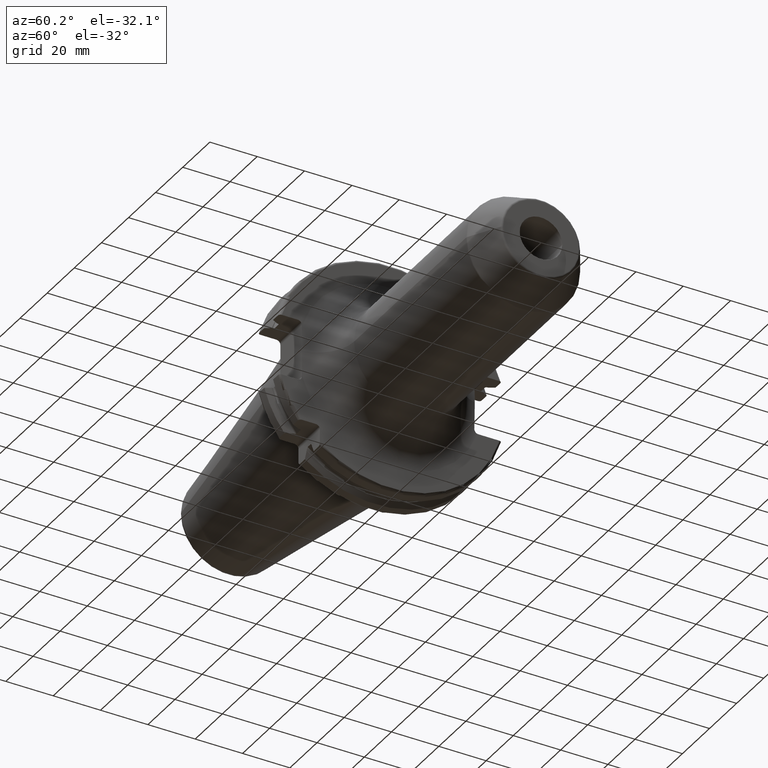
[diagram: clean part render]
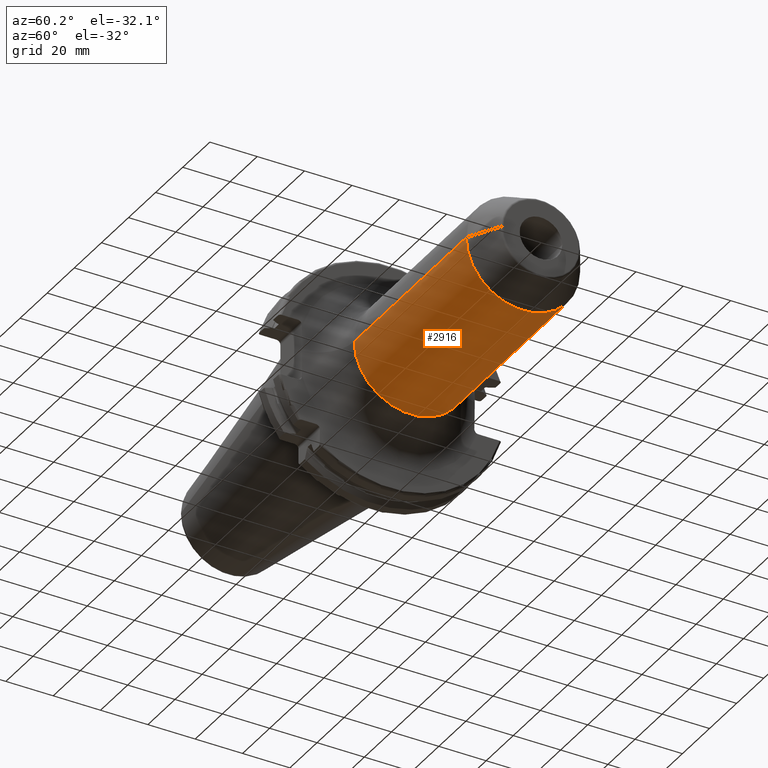
[diagram: same view with one face highlighted and labeled with its STEP entity id]
A machine part, auxiliary view. The second image highlights one B-rep face of the part: STEP entity #2916.
In plain terms, the highlighted cylindrical surface (partial cylindrical patch) has radius 24 mm, axis along (1, 0, 0).
Its self-contained STEP definition (entity closure, byte-faithful):
#1176=CARTESIAN_POINT('',(1.E2,2.4E1,0.E0));
#1177=CARTESIAN_POINT('',(1.E2,2.4E1,-3.104221699493E-1));
#1178=CARTESIAN_POINT('',(1.000474589876E2,2.398806754006E1,
-9.238599184697E-1));
#1179=CARTESIAN_POINT('',(1.002614472636E2,2.393547067972E1,-1.832680027886E0));
#1180=CARTESIAN_POINT('',(1.006115065907E2,2.385334910001E1,-2.692389651151E0));
#1181=CARTESIAN_POINT('',(1.010864266556E2,2.374981516105E1,-3.484002101402E0));
#1182=CARTESIAN_POINT('',(1.016748373096E2,2.363414913713E1,-4.192830136926E0));
#1183=CARTESIAN_POINT('',(1.023780022950E2,2.351454159285E1,-4.814373051576E0));
#1184=CARTESIAN_POINT('',(1.031759028833E2,2.340400129208E1,-5.321702008537E0));
#1185=CARTESIAN_POINT('',(1.040408770022E2,2.331463939970E1,-5.697398823349E0));
#1186=CARTESIAN_POINT('',(1.049713159454E2,2.325398447360E1,-5.938091722485E0));
#1187=CARTESIAN_POINT('',(1.059625839053E2,2.323069127969E1,-6.027724531579E0));
#1188=CARTESIAN_POINT('',(1.069563152425E2,2.325082766100E1,-5.950325439996E0));
#1189=CARTESIAN_POINT('',(1.078934724305E2,2.330910025744E1,-5.719850394909E0));
#1190=CARTESIAN_POINT('',(1.087687139381E2,2.339724352961E1,-5.351180394185E0));
#1191=CARTESIAN_POINT('',(1.095788462977E2,2.350779794895E1,-4.847150170071E0));
#1192=CARTESIAN_POINT('',(1.102942873661E2,2.362841636613E1,-4.225104405472E0));
#1193=CARTESIAN_POINT('',(1.108929966952E2,2.374549611544E1,-3.513651219124E0));
#1194=CARTESIAN_POINT('',(1.113770883492E2,2.385073159101E1,-2.716141496831E0));
#1195=CARTESIAN_POINT('',(1.117334721691E2,2.393423475666E1,-1.849943448490E0));
#1196=CARTESIAN_POINT('',(1.119516099104E2,2.398783169232E1,
-9.328464695382E-1));
#1197=CARTESIAN_POINT('',(1.12E2,2.4E1,-3.135199927511E-1));
#1198=CARTESIAN_POINT('',(1.12E2,2.4E1,0.E0));
#1200=DIRECTION('',(-9.999999996911E-1,-1.697496184032E-9,2.485436165492E-5));
#1201=VECTOR('',#1200,6.595000002037E1);
#1202=CARTESIAN_POINT('',(1.E2,2.4E1,0.E0));
#1203=LINE('',#1202,#1201);
#1204=CARTESIAN_POINT('',(3.405E1,0.E0,0.E0));
#1205=DIRECTION('',(1.E0,0.E0,0.E0));
#1206=DIRECTION('',(0.E0,-1.E0,0.E0));
#1207=AXIS2_PLACEMENT_3D('',#1204,#1205,#1206);
#1209=DIRECTION('',(-9.999999998035E-1,1.353980365219E-9,-1.982467948264E-5));
#1210=VECTOR('',#1209,8.268205082382E1);
#1211=CARTESIAN_POINT('',(1.167320508076E2,-2.4E1,4.909795810200E-12));
#1212=LINE('',#1211,#1210);
#1213=CARTESIAN_POINT('',(1.167320508076E2,0.E0,0.E0));
#1214=DIRECTION('',(-1.E0,0.E0,0.E0));
#1215=DIRECTION('',(0.E0,1.E0,0.E0));
#1216=AXIS2_PLACEMENT_3D('',#1213,#1214,#1215);
#1218=DIRECTION('',(-1.E0,0.E0,1.038030226070E-12));
#1219=VECTOR('',#1218,4.732050807569E0);
#1220=CARTESIAN_POINT('',(1.167320508076E2,2.4E1,-4.910538723947E-12));
#1221=LINE('',#1220,#1219);
#1664=CARTESIAN_POINT('',(1.12E2,2.4E1,0.E0));
#1666=VERTEX_POINT('',#1664);
#1668=CARTESIAN_POINT('',(1.E2,2.4E1,0.E0));
#1670=VERTEX_POINT('',#1668);
#1677=CARTESIAN_POINT('',(3.405E1,-2.4E1,0.E0));
#1678=CARTESIAN_POINT('',(3.405E1,2.4E1,0.E0));
#1679=VERTEX_POINT('',#1677);
#1680=VERTEX_POINT('',#1678);
#1685=CARTESIAN_POINT('',(1.167320508076E2,2.4E1,0.E0));
#1686=CARTESIAN_POINT('',(1.167320508076E2,-2.4E1,0.E0));
#1687=VERTEX_POINT('',#1685);
#1688=VERTEX_POINT('',#1686);
#2903=CARTESIAN_POINT('',(1.35025E1,0.E0,0.E0));
#2904=DIRECTION('',(1.E0,0.E0,0.E0));
#2905=DIRECTION('',(0.E0,-1.E0,0.E0));
#2906=AXIS2_PLACEMENT_3D('',#2903,#2904,#2905);
#2907=CYLINDRICAL_SURFACE('',#2906,2.4E1);
#2908=ORIENTED_EDGE('',*,*,#2792,.F.);
#2909=ORIENTED_EDGE('',*,*,#2763,.T.);
#2910=ORIENTED_EDGE('',*,*,#1972,.F.);
#2911=ORIENTED_EDGE('',*,*,#2760,.F.);
#2912=ORIENTED_EDGE('',*,*,#2893,.F.);
#2913=ORIENTED_EDGE('',*,*,#2756,.T.);
#2914=EDGE_LOOP('',(#2908,#2909,#2910,#2911,#2912,#2913));
#2915=FACE_OUTER_BOUND('',#2914,.F.);
#2916=ADVANCED_FACE('',(#2915),#2907,.T.);
#1199=B_SPLINE_CURVE_WITH_KNOTS('',3,(#1176,#1177,#1178,#1179,#1180,#1181,#1182,
#1183,#1184,#1185,#1186,#1187,#1188,#1189,#1190,#1191,#1192,#1193,#1194,#1195,
#1196,#1197,#1198),.UNSPECIFIED.,.F.,.F.,(4,1,1,1,1,1,1,1,1,1,1,1,1,1,1,1,1,1,1,
1,4),(0.E0,5.E-2,1.E-1,1.5E-1,2.E-1,2.5E-1,3.E-1,3.5E-1,4.E-1,4.5E-1,5.E-1,
5.5E-1,6.E-1,6.5E-1,7.E-1,7.5E-1,8.E-1,8.5E-1,9.E-1,9.5E-1,1.E0),.UNSPECIFIED.);
#1208=CIRCLE('',#1207,2.4E1);
#1217=CIRCLE('',#1216,2.4E1);
#1972=EDGE_CURVE('',#1679,#1680,#1208,.T.);
#2756=EDGE_CURVE('',#1687,#1666,#1221,.T.);
#2760=EDGE_CURVE('',#1688,#1679,#1212,.T.);
#2763=EDGE_CURVE('',#1670,#1680,#1203,.T.);
#2792=EDGE_CURVE('',#1670,#1666,#1199,.T.);
#2893=EDGE_CURVE('',#1687,#1688,#1217,.T.);